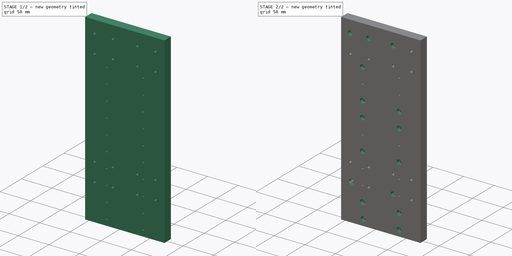
[diagram: build sequence overview — one tinted view per stage of 2, left to right]
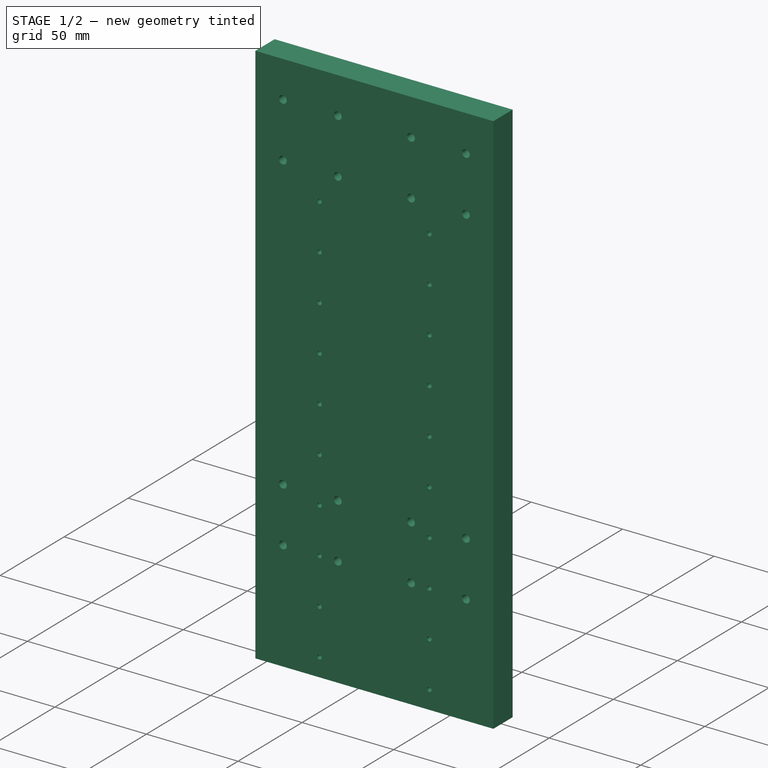
[diagram: stage 1 of 2 — iso view after this stage's code; geometry added in this stage tinted green]
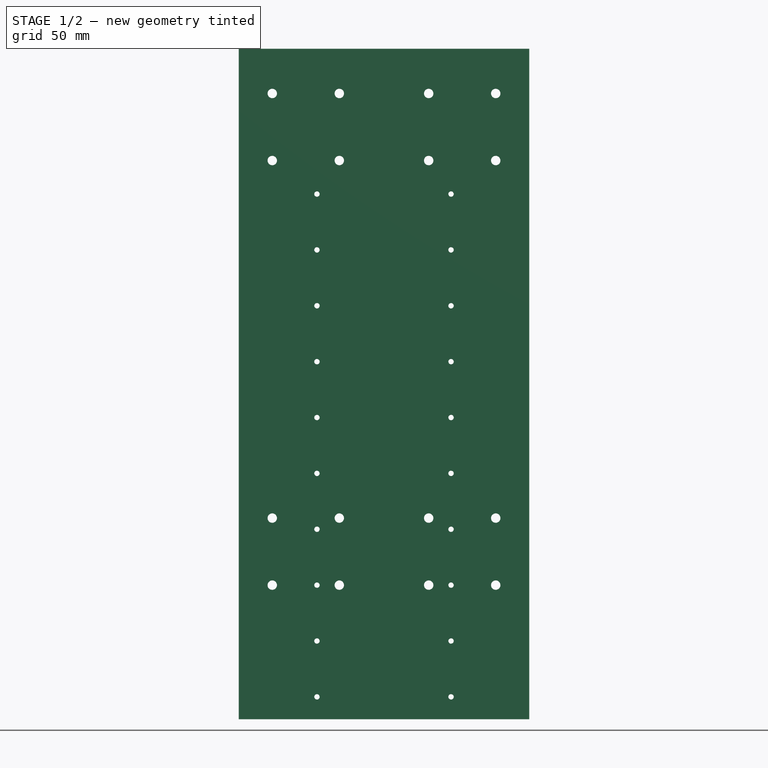
[diagram: stage 1 of 2 — front view after this stage's code; geometry added in this stage tinted green]
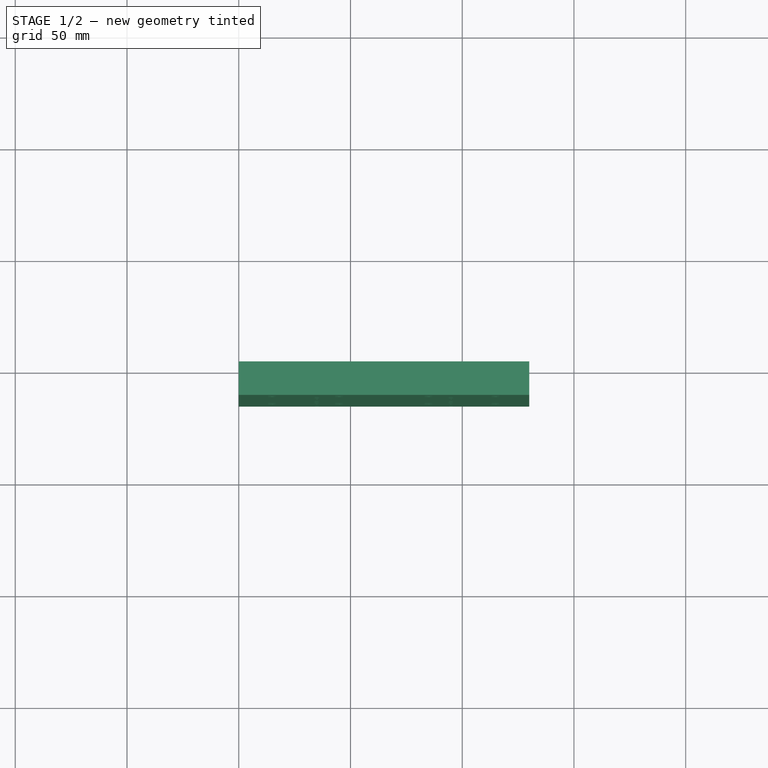
[diagram: stage 1 of 2 — top view after this stage's code; geometry added in this stage tinted green]
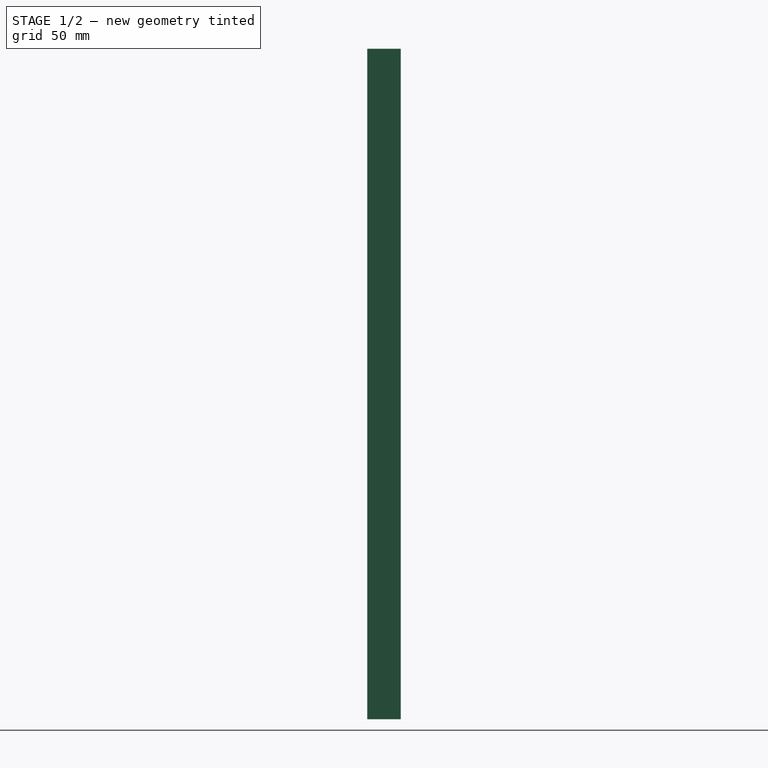
[diagram: stage 1 of 2 — right view after this stage's code; geometry added in this stage tinted green]
FCSTD DOCUMENT  (FreeCAD 0.21R33771 (Git))
Label: PiastraCarroUtensile
License: All rights reserved
LicenseURL: http://en.wikipedia.org/wiki/All_rights_reserved
objects: Sketcher::SketchObject×3, PartDesign::Pocket×2, PartDesign::Pad×1, PartDesign::CoordinateSystem×1, PartDesign::Body×1
note: 11 computed .brp shape members not serialized (recipe doc carries the construction recipe); baked Part::Feature solids carry a one-line shape summary decoded from their .brp

FEATURE [Sketcher::SketchObject] Sketch
  FullyConstrained = true
  MapMode = 5
  Placement = pos=(0,0,0) rot=(1,0,0;1.5708rad)
  Support = -> [XZ_Plane]
  sketch-geometry (4):
    g0: LineSegment StartX=0 StartY=0 StartZ=0 EndX=130 EndY=0 EndZ=0
    g1: LineSegment StartX=130 StartY=0 StartZ=0 EndX=130 EndY=300 EndZ=0
    g2: LineSegment StartX=130 StartY=300 StartZ=0 EndX=0 EndY=300 EndZ=0
    g3: LineSegment StartX=0 StartY=300 StartZ=0 EndX=0 EndY=0 EndZ=0
  constraints (11):
    c: Coincident(g0,g1)
    c: Coincident(g1,g2)
    c: Coincident(g2,g3)
    c: Coincident(g3,g0)
    c: Horizontal(g0)
    c: Horizontal(g2)
    c: Vertical(g1)
    c: Vertical(g3)
    c: Coincident(g0,g-1)
    c: DistanceX(g0,g0) = 130
    c: DistanceY(g3,g3) = 300
FEATURE [PartDesign::Pad] Pad
  Direction = (0,-1,-2e-16)
  Length = 15
  Length2 = 100
  Placement = pos=(0,0,0) rot=(1,0,0;1.5708rad)
  Profile = -> Sketch
  ReferenceAxis = -> Sketch [N_Axis]
  Type = 0
FEATURE [Sketcher::SketchObject] Sketch001
  FullyConstrained = false
  MapMode = 5
  Placement = pos=(0,-15,0) rot=(1,0,0;1.5708rad)
  Support = -> [Pad]
  sketch-geometry (70):
    g0: Circle CenterX=15 CenterY=280 CenterZ=0 NormalX=0 NormalY=0 NormalZ=1 AngleXU=0 Radius=2.1
    g1: Circle CenterX=45 CenterY=280 CenterZ=0 NormalX=0 NormalY=0 NormalZ=1 AngleXU=0 Radius=2.1
    g2: LineSegment StartX=15 StartY=280 StartZ=0 EndX=45 EndY=280 EndZ=0
    g3: Circle CenterX=15 CenterY=250 CenterZ=0 NormalX=0 NormalY=0 NormalZ=1 AngleXU=0 Radius=2.1
    g4: LineSegment StartX=15 StartY=280 StartZ=0 EndX=15 EndY=250 EndZ=0
    g5: Circle CenterX=45 CenterY=250 CenterZ=0 NormalX=0 NormalY=0 NormalZ=1 AngleXU=0 Radius=2.1
    g6: LineSegment StartX=15 StartY=250 StartZ=0 EndX=45 EndY=250 EndZ=0
    g7: Circle CenterX=85 CenterY=280 CenterZ=0 NormalX=0 NormalY=0 NormalZ=1 AngleXU=0 Radius=2.1
    g8: Circle CenterX=115 CenterY=280 CenterZ=0 NormalX=0 NormalY=0 NormalZ=1 AngleXU=0 Radius=2.1
    g9: LineSegment StartX=85 StartY=280 StartZ=0 EndX=115 EndY=280 EndZ=0
    g10: Circle CenterX=85 CenterY=250 CenterZ=0 NormalX=0 NormalY=0 NormalZ=1 AngleXU=0 Radius=2.1
    g11: LineSegment StartX=85 StartY=280 StartZ=0 EndX=85 EndY=250 EndZ=0
    g12: Circle CenterX=115 CenterY=250 CenterZ=0 NormalX=0 NormalY=0 NormalZ=1 AngleXU=0 Radius=2.1
    g13: LineSegment StartX=85 StartY=250 StartZ=0 EndX=115 EndY=250 EndZ=0
    g14: LineSegment StartX=15 StartY=280 StartZ=0 EndX=85 EndY=280 EndZ=0
    g15: Circle CenterX=15 CenterY=90 CenterZ=0 NormalX=0 NormalY=0 NormalZ=1 AngleXU=0 Radius=2.1
    g16: Circle CenterX=45 CenterY=90 CenterZ=0 NormalX=0 NormalY=0 NormalZ=1 AngleXU=0 Radius=2.1
    g17: LineSegment StartX=15 StartY=90 StartZ=0 EndX=45 EndY=90 EndZ=0
    g18: Circle CenterX=15 CenterY=60 CenterZ=0 NormalX=0 NormalY=0 NormalZ=1 AngleXU=0 Radius=2.1
    g19: LineSegment StartX=15 StartY=90 StartZ=0 EndX=15 EndY=60 EndZ=0
    g20: Circle CenterX=45 CenterY=60 CenterZ=0 NormalX=0 NormalY=0 NormalZ=1 AngleXU=0 Radius=2.1
    g21: LineSegment StartX=15 StartY=60 StartZ=0 EndX=45 EndY=60 EndZ=0
    g22: LineSegment StartX=15 StartY=280 StartZ=0 EndX=15 EndY=90 EndZ=0
    g23: Circle CenterX=85 CenterY=90 CenterZ=0 NormalX=0 NormalY=0 NormalZ=1 AngleXU=0 Radius=2.1
    g24: Circle CenterX=115 CenterY=90 CenterZ=0 NormalX=0 NormalY=0 NormalZ=1 AngleXU=0 Radius=2.1
    g25: LineSegment StartX=85 StartY=90 StartZ=0 EndX=115 EndY=90 EndZ=0
    g26: Circle CenterX=85 CenterY=60 CenterZ=0 NormalX=0 NormalY=0 NormalZ=1 AngleXU=0 Radius=2.1
    g27: LineSegment StartX=85 StartY=90 StartZ=0 EndX=85 EndY=60 EndZ=0
    g28: Circle CenterX=115 CenterY=60 CenterZ=0 NormalX=0 NormalY=0 NormalZ=1 AngleXU=0 Radius=2.1
    g29: LineSegment StartX=85 StartY=60 StartZ=0 EndX=115 EndY=60 EndZ=0
    g30: LineSegment StartX=15 StartY=90 StartZ=0 EndX=85 EndY=90 EndZ=0
    g31: Circle CenterX=35 CenterY=235 CenterZ=0 NormalX=0 NormalY=0 NormalZ=1 AngleXU=0 Radius=1.2
    g32: Circle CenterX=95 CenterY=235 CenterZ=0 NormalX=0 NormalY=0 NormalZ=1 AngleXU=0 Radius=1.2
    g33: LineSegment StartX=35 StartY=235 StartZ=0 EndX=95 EndY=235 EndZ=0
    g34: Circle CenterX=35 CenterY=210 CenterZ=0 NormalX=0 NormalY=0 NormalZ=1 AngleXU=0 Radius=1.2
    g35: LineSegment StartX=35 StartY=235 StartZ=0 EndX=35 EndY=210 EndZ=0
    g36: Circle CenterX=95 CenterY=210 CenterZ=0 NormalX=0 NormalY=0 NormalZ=1 AngleXU=0 Radius=1.2
    g37: LineSegment StartX=35 StartY=210 StartZ=0 EndX=95 EndY=210 EndZ=0
    g38: Circle CenterX=35 CenterY=185 CenterZ=0 NormalX=0 NormalY=0 NormalZ=1 AngleXU=0 Radius=1.2
    g39: LineSegment StartX=35 StartY=210 StartZ=0 EndX=35 EndY=185 EndZ=0
    g40: Circle CenterX=95 CenterY=185 CenterZ=0 NormalX=0 NormalY=0 NormalZ=1 AngleXU=0 Radius=1.2
    g41: LineSegment StartX=35 StartY=185 StartZ=0 EndX=95 EndY=185 EndZ=0
    g42: Circle CenterX=35 CenterY=160 CenterZ=0 NormalX=0 NormalY=0 NormalZ=1 AngleXU=0 Radius=1.2
    g43: LineSegment StartX=35 StartY=185 StartZ=0 EndX=35 EndY=160 EndZ=0
    g44: Circle CenterX=95 CenterY=160 CenterZ=0 NormalX=0 NormalY=0 NormalZ=1 AngleXU=0 Radius=1.2
    g45: LineSegment StartX=35 StartY=160 StartZ=0 EndX=95 EndY=160 EndZ=0
    g46: Circle CenterX=35 CenterY=135 CenterZ=0 NormalX=0 NormalY=0 NormalZ=1 AngleXU=0 Radius=1.2
    g47: LineSegment StartX=35 StartY=160 StartZ=0 EndX=35 EndY=135 EndZ=0
    g48: Circle CenterX=95 CenterY=135 CenterZ=0 NormalX=0 NormalY=0 NormalZ=1 AngleXU=0 Radius=1.2
    g49: LineSegment StartX=35 StartY=135 StartZ=0 EndX=95 EndY=135 EndZ=0
    g50: Circle CenterX=35 CenterY=110 CenterZ=0 NormalX=0 NormalY=0 NormalZ=1 AngleXU=0 Radius=1.2
    g51: LineSegment StartX=35 StartY=135 StartZ=0 EndX=35 EndY=110 EndZ=0
    g52: Circle CenterX=95 CenterY=110 CenterZ=0 NormalX=0 NormalY=0 NormalZ=1 AngleXU=0 Radius=1.2
    g53: LineSegment StartX=35 StartY=110 StartZ=0 EndX=95 EndY=110 EndZ=0
    g54: Circle CenterX=35 CenterY=85 CenterZ=0 NormalX=0 NormalY=0 NormalZ=1 AngleXU=0 Radius=1.2
    g55: LineSegment StartX=35 StartY=110 StartZ=0 EndX=35 EndY=85 EndZ=0
    g56: Circle CenterX=95 CenterY=85 CenterZ=0 NormalX=0 NormalY=0 NormalZ=1 AngleXU=0 Radius=1.2
    g57: LineSegment StartX=35 StartY=85 StartZ=0 EndX=95 EndY=85 EndZ=0
    g58: Circle CenterX=35 CenterY=60 CenterZ=0 NormalX=0 NormalY=0 NormalZ=1 AngleXU=0 Radius=1.2
    g59: LineSegment StartX=35 StartY=85 StartZ=0 EndX=35 EndY=60 EndZ=0
    g60: Circle CenterX=95 CenterY=60 CenterZ=0 NormalX=0 NormalY=0 NormalZ=1 AngleXU=0 Radius=1.2
    g61: LineSegment StartX=35 StartY=60 StartZ=0 EndX=95 EndY=60 EndZ=0
    g62: Circle CenterX=35 CenterY=35 CenterZ=0 NormalX=0 NormalY=0 NormalZ=1 AngleXU=0 Radius=1.2
    g63: LineSegment StartX=35 StartY=60 StartZ=0 EndX=35 EndY=35 EndZ=0
    g64: Circle CenterX=95 CenterY=35 CenterZ=0 NormalX=0 NormalY=0 NormalZ=1 AngleXU=0 Radius=1.2
    g65: LineSegment StartX=35 StartY=35 StartZ=0 EndX=95 EndY=35 EndZ=0
    g66: Circle CenterX=35 CenterY=10 CenterZ=0 NormalX=0 NormalY=0 NormalZ=1 AngleXU=0 Radius=1.2
    g67: LineSegment StartX=35 StartY=35 StartZ=0 EndX=35 EndY=10 EndZ=0
    g68: Circle CenterX=95 CenterY=10 CenterZ=0 NormalX=0 NormalY=0 NormalZ=1 AngleXU=0 Radius=1.2
    g69: LineSegment StartX=35 StartY=10 StartZ=0 EndX=95 EndY=10 EndZ=0
  constraints (175):
    c: Coincident(g0,g2)
    c: Coincident(g1,g2)
    c: Distance(g2) = 30
    c: Angle(g2) = 0
    c: Coincident(g0,g4)
    c: Coincident(g3,g4)
    c: Distance(g4) = 30
    c: Perpendicular(g4,g2)
    c: Coincident(g3,g6)
    c: Coincident(g5,g6)
    c: Equal(g2,g6)
    c: Parallel(g6,g2)
    c: Coincident(g7,g9)
    c: Coincident(g8,g9)
    c: Distance(g9) = 30
    c: Angle(g9) = 0
    c: Coincident(g7,g11)
    c: Coincident(g10,g11)
    c: Distance(g11) = 30
    c: Perpendicular(g11,g9)
    c: Coincident(g10,g13)
    c: Coincident(g12,g13)
    c: Equal(g9,g13)
    c: Parallel(g13,g9)
    c: Coincident(g0,g14)
    c: Coincident(g7,g14)
    c: Distance(g14) = 70
    c: Angle(g14) = 0
    c: Coincident(g15,g17)
    c: Coincident(g16,g17)
    c: Distance(g17) = 30
    c: Angle(g17) = 0
    c: Coincident(g15,g19)
    c: Coincident(g18,g19)
    c: Distance(g19) = 30
    c: Perpendicular(g19,g17)
    c: Coincident(g18,g21)
    c: Coincident(g20,g21)
    c: Equal(g17,g21)
    c: Parallel(g21,g17)
    c: Coincident(g0,g22)
    c: Coincident(g15,g22)
    c: Distance(g22) = 190
    c: Perpendicular(g22,g14)
    c: Coincident(g23,g25)
    c: Coincident(g24,g25)
    c: Distance(g25) = 30
    c: Angle(g25) = 0
    c: Coincident(g23,g27)
    c: Coincident(g26,g27)
    c: Perpendicular(g27,g25)
    c: Coincident(g26,g29)
    c: Coincident(g28,g29)
    c: Equal(g25,g29)
    c: Parallel(g29,g25)
    c: Coincident(g15,g30)
    c: Coincident(g23,g30)
    c: Equal(g14,g30)
    c: Parallel(g30,g14)
    c: DistanceY(g-1,g0) = 280
    c: DistanceX(g-1,g0) = 15
    c: Radius(g0) = 2.1
    c: Equal(g3,g0)
    c: Equal(g0,g1)
    c: Equal(g1,g5)
    c: Equal(g5,g10)
    c: Equal(g10,g12)
    c: Equal(g12,g8)
    c: Equal(g8,g7)
    c: Equal(g16,g23)
    c: Equal(g23,g24)
    c: Equal(g24,g18)
    c: Equal(g18,g20)
    c: Equal(g15,g16)
    c: Equal(g24,g28)
    c: Equal(g28,g26)
    c: Equal(g27,g19)
    c: Radius(g31) = 1.2
    c: DistanceX(g0,g31) = 20
    c: Coincident(g31,g33)
    c: Coincident(g32,g33)
    c: Distance(g33) = 60
    c: Angle(g33) = 0
    c: Coincident(g31,g35)
    c: Coincident(g34,g35)
    c: Distance(g35) = 25
    c: Perpendicular(g35,g33)
    c: Coincident(g34,g37)
    c: Coincident(g36,g37)
    c: Equal(g33,g37)
    c: Parallel(g37,g33)
    c: Coincident(g34,g39)
    c: Coincident(g38,g39)
    c: Equal(g35,g39)
    c: Perpendicular(g39,g33)
    c: Coincident(g38,g41)
    c: Coincident(g40,g41)
    c: Equal(g33,g41)
    c: Parallel(g41,g33)
    c: Coincident(g38,g43)
    c: Coincident(g42,g43)
    c: Equal(g35,g43)
    c: Perpendicular(g43,g33)
    c: Coincident(g42,g45)
    c: Coincident(g44,g45)
    c: Equal(g33,g45)
    c: Parallel(g45,g33)
    c: Coincident(g42,g47)
    c: Coincident(g46,g47)
    c: Equal(g35,g47)
    c: Perpendicular(g47,g33)
    c: Coincident(g46,g49)
    c: Coincident(g48,g49)
    c: Equal(g33,g49)
    c: Parallel(g49,g33)
    c: Coincident(g46,g51)
    c: Coincident(g50,g51)
    c: Equal(g35,g51)
    c: Perpendicular(g51,g33)
    c: Coincident(g50,g53)
    c: Coincident(g52,g53)
    c: Equal(g33,g53)
    c: Parallel(g53,g33)
    c: Coincident(g50,g55)
    c: Coincident(g54,g55)
    c: Equal(g35,g55)
    c: Perpendicular(g55,g33)
    c: Coincident(g54,g57)
    c: Coincident(g56,g57)
    c: Equal(g33,g57)
    c: Parallel(g57,g33)
    c: Coincident(g54,g59)
    c: Coincident(g58,g59)
    c: Equal(g35,g59)
    c: Perpendicular(g59,g33)
    c: Coincident(g58,g61)
    c: Coincident(g60,g61)
    c: Equal(g33,g61)
    c: Parallel(g61,g33)
    c: Coincident(g58,g63)
    c: Coincident(g62,g63)
    c: Equal(g35,g63)
    c: Perpendicular(g63,g33)
    c: Coincident(g62,g65)
    c: Coincident(g64,g65)
    c: Equal(g33,g65)
    c: Parallel(g65,g33)
    c: Coincident(g62,g67)
    c: Coincident(g66,g67)
    c: Equal(g35,g67)
    c: Perpendicular(g67,g33)
    c: Coincident(g66,g69)
    c: Coincident(g68,g69)
    c: Equal(g33,g69)
    c: Parallel(g69,g33)
    c: Equal(g31,g32)
    c: Equal(g32,g36)
    c: Equal(g36,g34)
    c: Equal(g34,g38)
    c: Equal(g38,g40)
    c: Equal(g38,g42)
    c: Equal(g42,g44)
    c: Equal(g44,g48)
    c: Equal(g48,g46)
    c: Equal(g46,g50)
    c: Equal(g50,g52)
    c: Equal(g52,g56)
    c: Equal(g56,g54)
    c: Equal(g54,g58)
    c: Equal(g58,g60)
    c: Equal(g60,g64)
    c: Equal(g64,g62)
    c: Equal(g62,g66)
    c: Equal(g66,g68)
    c: DistanceY(g-1,g66) = 10
FEATURE [PartDesign::Pocket] Pocket
  BaseFeature = -> Pad
  Direction = (0,1,2e-16)
  Length = 0
  Length2 = 100
  Placement = pos=(0,0,0) rot=(1,0,0;1.5708rad)
  Profile = -> Sketch001
  Type = 1
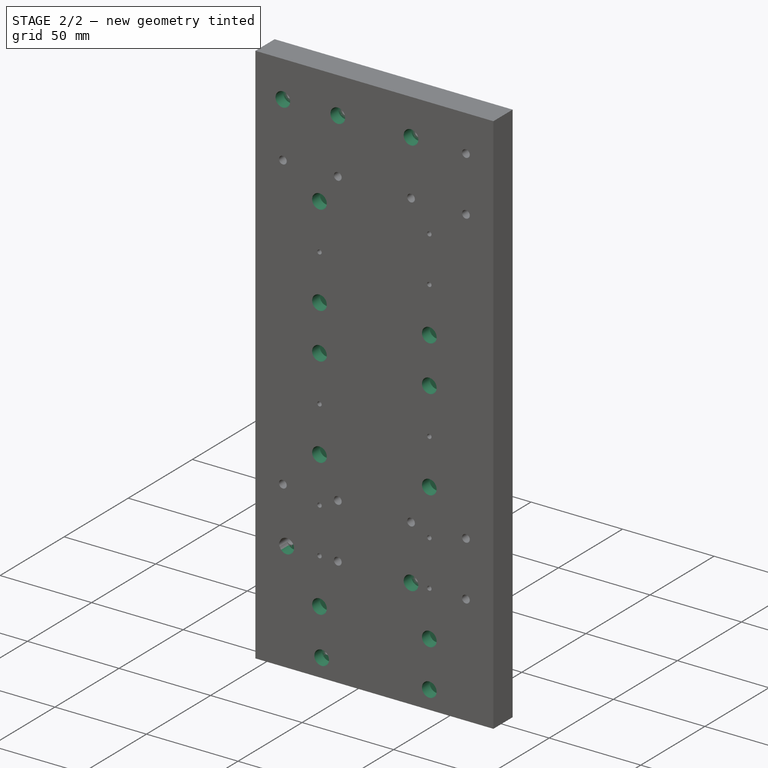
[diagram: stage 2 of 2 — iso view after this stage's code; geometry added in this stage tinted green]
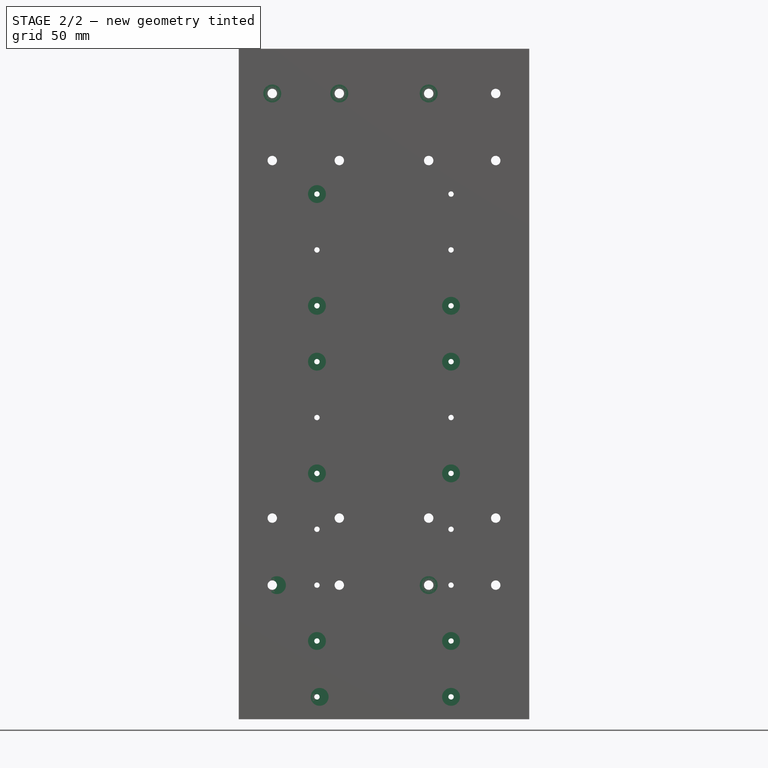
[diagram: stage 2 of 2 — front view after this stage's code; geometry added in this stage tinted green]
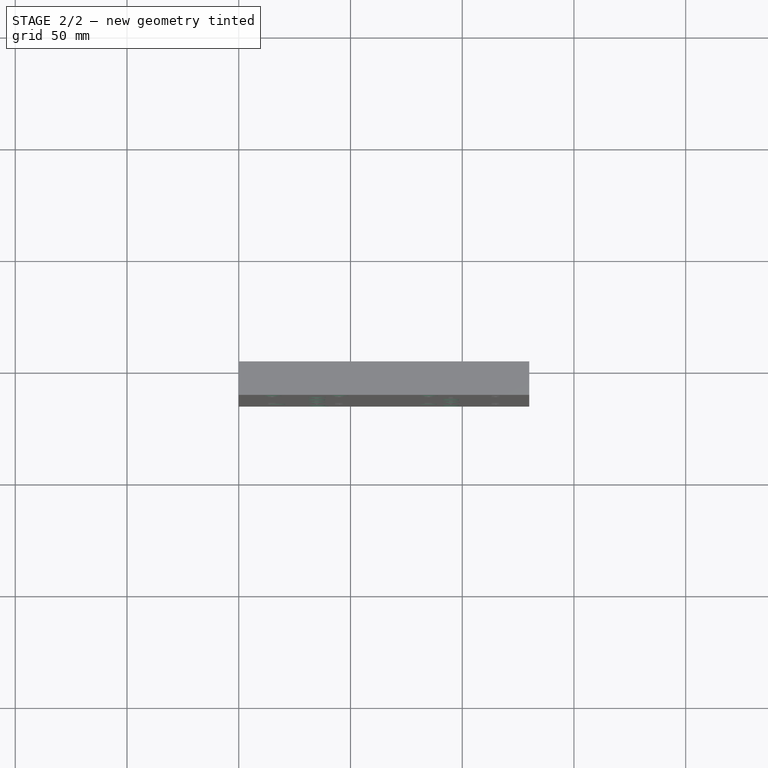
[diagram: stage 2 of 2 — top view after this stage's code; geometry added in this stage tinted green]
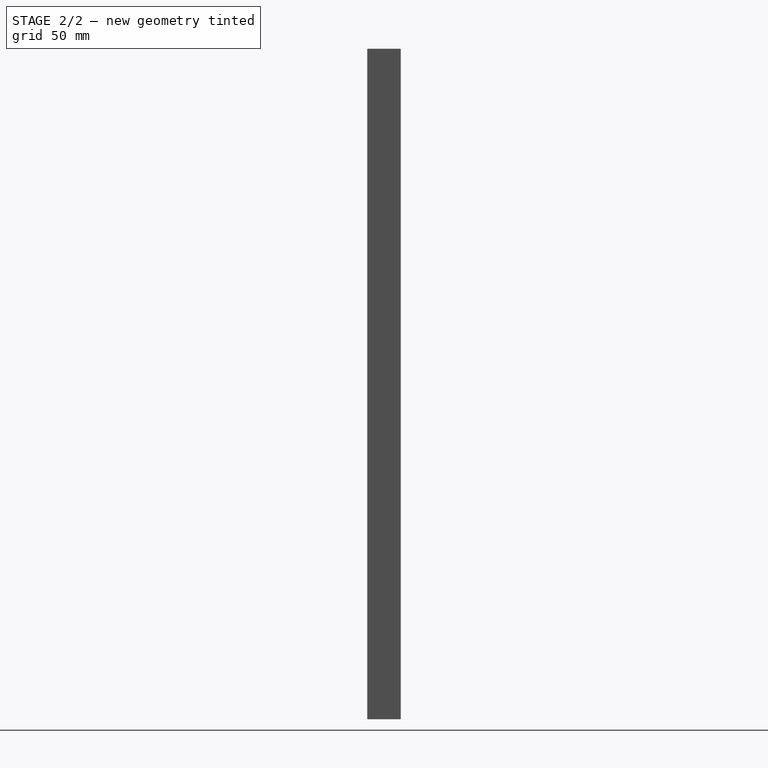
[diagram: stage 2 of 2 — right view after this stage's code; geometry added in this stage tinted green]
FEATURE [Sketcher::SketchObject] Sketch002
  ExternalGeometry = -> [Pocket]
  FullyConstrained = false
  MapMode = 5
  Placement = pos=(0,-15,0) rot=(1,0,0;1.5708rad)
  Support = -> [Pocket]
  sketch-geometry (16):
    g0: Circle CenterX=15 CenterY=280 CenterZ=0 NormalX=0 NormalY=0 NormalZ=1 AngleXU=0 Radius=4
    g1: Circle CenterX=45 CenterY=280 CenterZ=0 NormalX=0 NormalY=0 NormalZ=1 AngleXU=0 Radius=4
    g2: Circle CenterX=95 CenterY=185 CenterZ=0 NormalX=0 NormalY=0 NormalZ=1 AngleXU=0 Radius=4
    g3: Circle CenterX=36.2 CenterY=10 CenterZ=0 NormalX=0 NormalY=0 NormalZ=1 AngleXU=0 Radius=4
    g4: Circle CenterX=35 CenterY=235 CenterZ=0 NormalX=0 NormalY=0 NormalZ=1 AngleXU=0 Radius=4
    g5: Circle CenterX=85 CenterY=60 CenterZ=0 NormalX=0 NormalY=0 NormalZ=1 AngleXU=0 Radius=4
    g6: Circle CenterX=17.1 CenterY=60 CenterZ=0 NormalX=0 NormalY=0 NormalZ=1 AngleXU=0 Radius=4
    g7: Circle CenterX=95 CenterY=160 CenterZ=0 NormalX=0 NormalY=0 NormalZ=1 AngleXU=0 Radius=4
    g8: Circle CenterX=35 CenterY=110 CenterZ=0 NormalX=0 NormalY=0 NormalZ=1 AngleXU=0 Radius=4
    g9: Circle CenterX=35 CenterY=185 CenterZ=0 NormalX=0 NormalY=0 NormalZ=1 AngleXU=0 Radius=4
    g10: Circle CenterX=95 CenterY=35 CenterZ=0 NormalX=0 NormalY=0 NormalZ=1 AngleXU=0 Radius=4
    g11: Circle CenterX=85 CenterY=280 CenterZ=0 NormalX=0 NormalY=0 NormalZ=1 AngleXU=0 Radius=4
    g12: Circle CenterX=95 CenterY=10 CenterZ=0 NormalX=0 NormalY=0 NormalZ=1 AngleXU=0 Radius=4
    g13: Circle CenterX=35 CenterY=160 CenterZ=0 NormalX=0 NormalY=0 NormalZ=1 AngleXU=0 Radius=4
    g14: Circle CenterX=35 CenterY=35 CenterZ=0 NormalX=0 NormalY=0 NormalZ=1 AngleXU=0 Radius=4
    g15: Circle CenterX=95 CenterY=110 CenterZ=0 NormalX=0 NormalY=0 NormalZ=1 AngleXU=0 Radius=4
  constraints (22):
    c: Coincident(g-6,g4)
    c: Coincident(g5,g-5)
    c: Coincident(g-7,g7)
    c: Coincident(g-8,g2)
    c: Coincident(g-10,g3)
    c: Coincident(g-9,g6)
    c: Coincident(g-11,g8)
    c: Coincident(g-12,g9)
    c: Coincident(g-15,g13)
    c: Coincident(g10,g-13)
    c: Coincident(g11,g-14)
    c: Coincident(g14,g-16)
    c: Coincident(g15,g-18)
    c: Coincident(g12,g-17)
    c: Radius(g8) = 4
    c: Equal(g8,g9)
    c: Equal(g9,g13)
    c: Equal(g13,g14)
    c: Equal(g9,g10)
    c: Equal(g10,g11)
    c: Equal(g11,g15)
    c: Equal(g15,g12)
FEATURE [PartDesign::Pocket] Pocket001
  BaseFeature = -> Pocket
  Direction = (0,1,2e-16)
  Length = 6
  Length2 = 5
  Placement = pos=(0,0,0) rot=(1,0,0;1.5708rad)
  Profile = -> Sketch002
  ReferenceAxis = -> Sketch002 [N_Axis]
  Type = 0
FEATURE [PartDesign::CoordinateSystem] LCS_PiastraCarro
  AttacherType = Attacher::AttachEngine3D
FEATURE [PartDesign::Body] Body
  Group = -> [Sketch,Pad,Sketch001,Pocket,Sketch002,Pocket001,LCS_PiastraCarro]
  Origin = -> Origin
  Tip = -> Pocket001
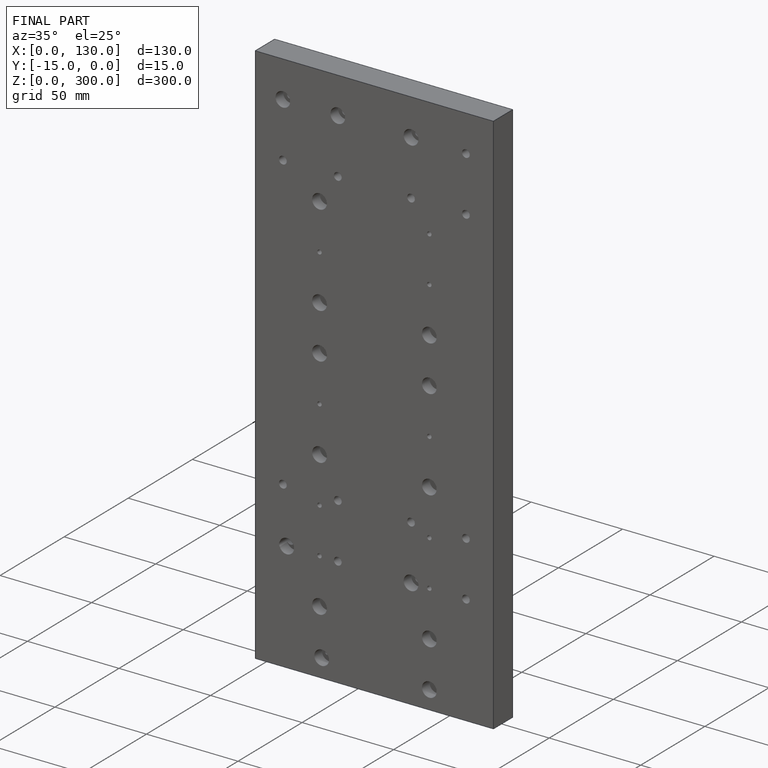
[diagram: finished part — iso view with bounding-box wireframe]
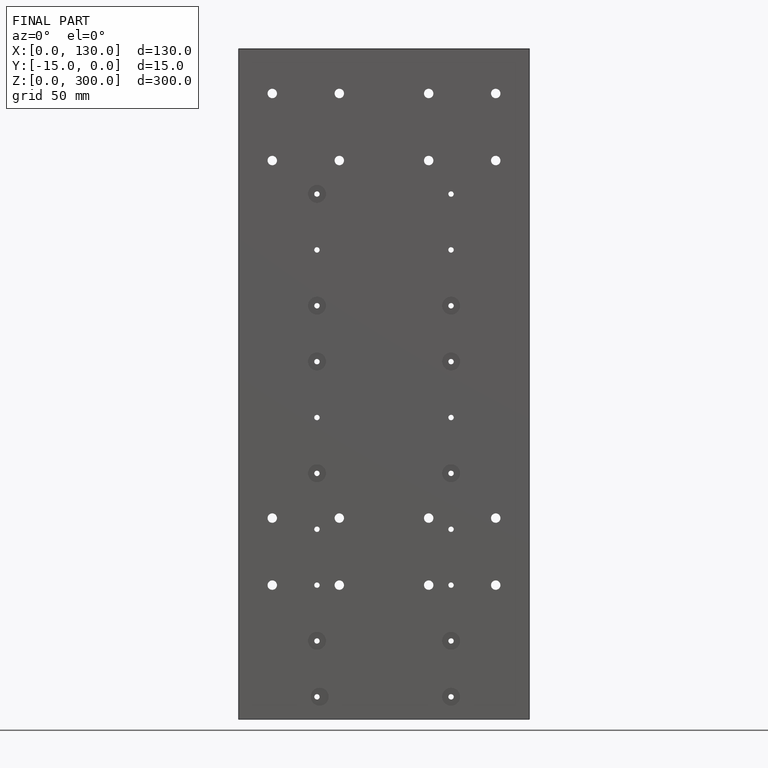
[diagram: finished part — front view with bounding-box wireframe]
